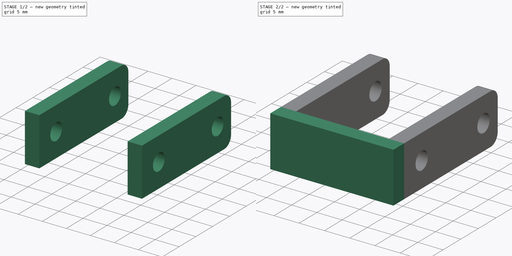
[diagram: build sequence overview — one tinted view per stage of 2, left to right]
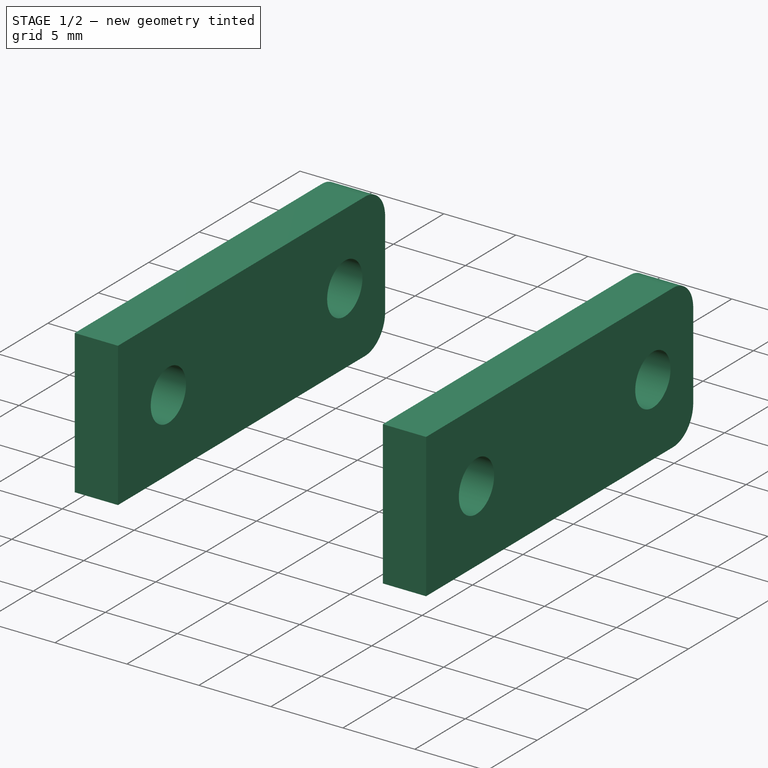
[diagram: stage 1 of 2 — iso view after this stage's code; geometry added in this stage tinted green]
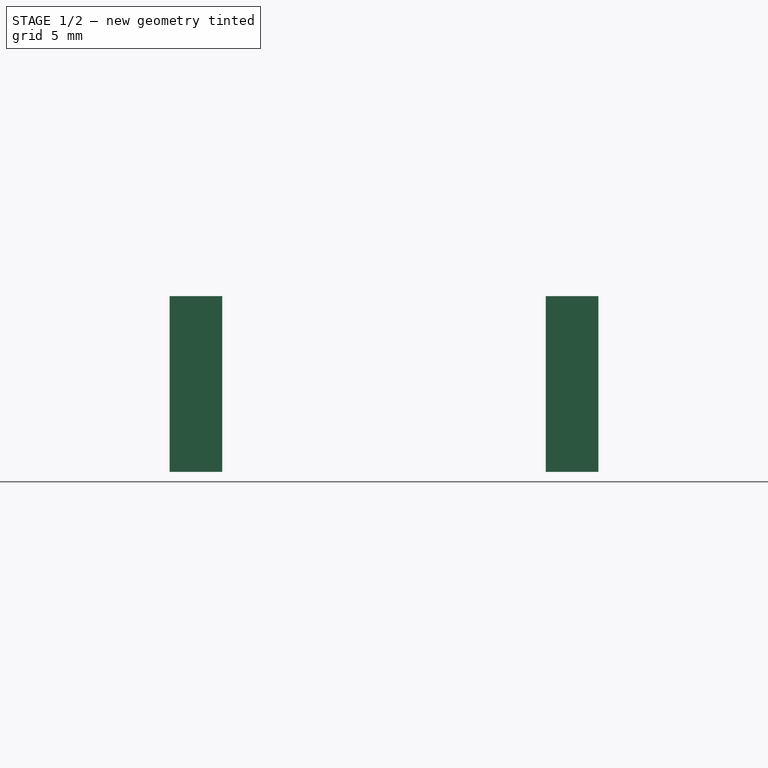
[diagram: stage 1 of 2 — front view after this stage's code; geometry added in this stage tinted green]
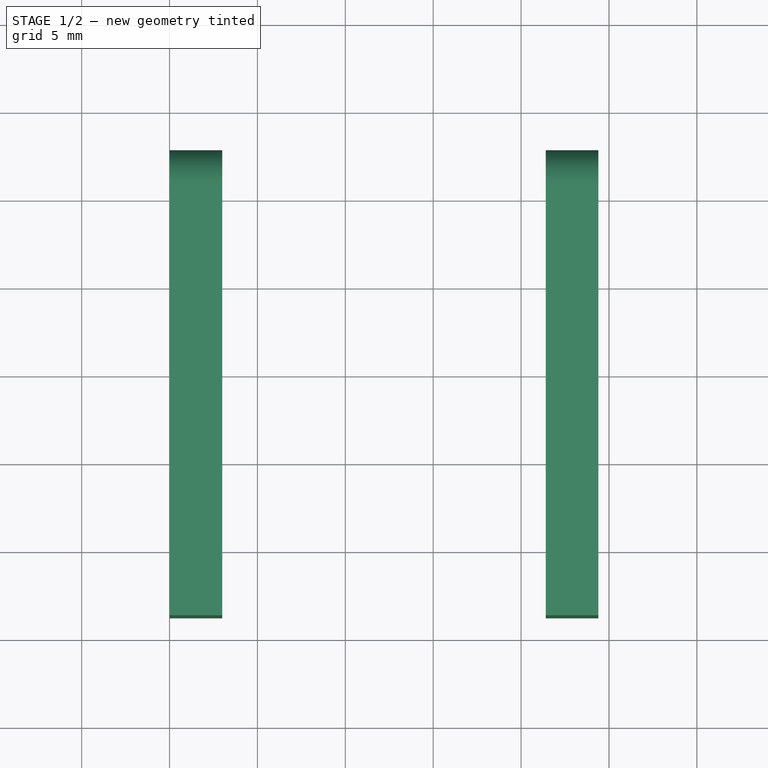
[diagram: stage 1 of 2 — top view after this stage's code; geometry added in this stage tinted green]
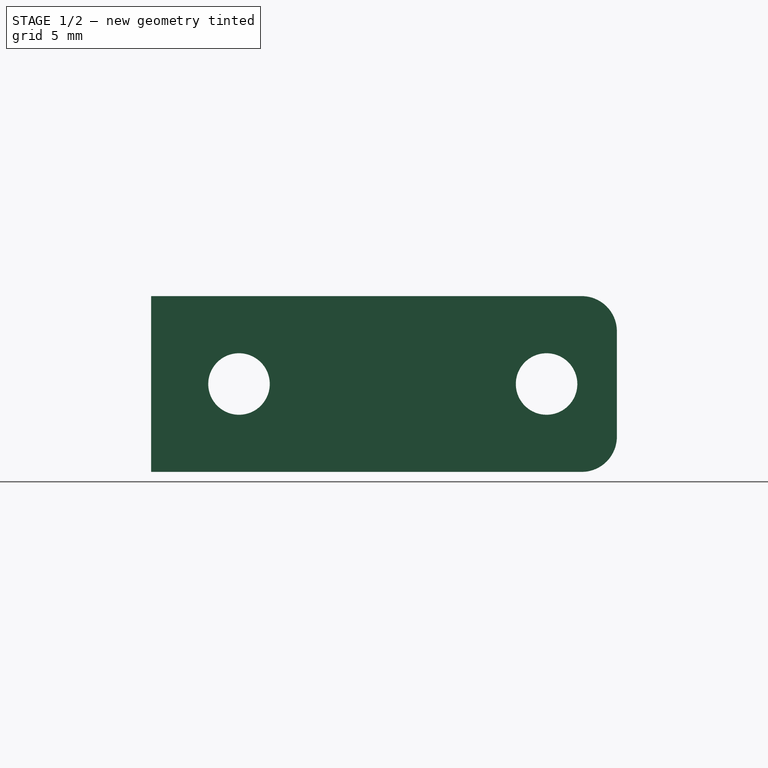
[diagram: stage 1 of 2 — right view after this stage's code; geometry added in this stage tinted green]
FCSTD DOCUMENT  (FreeCAD 0.16R6703 (Git))
Label: motor holder
License: All rights reserved
LicenseURL: http://en.wikipedia.org/wiki/All_rights_reserved
objects: Sketcher::SketchObject×3, PartDesign::Pad×2, PartDesign::Pocket×1
note: 9 computed .brp shape members not serialized (recipe doc carries the construction recipe); baked Part::Feature solids carry a one-line shape summary decoded from their .brp

FEATURE [Sketcher::SketchObject] Sketch
  Placement = pos=(0,0,0) rot=(0.57735,0.57735,0.57735;2.0944rad)
  sketch-geometry (8):
    g0: LineSegment StartX=-13.75 StartY=5 StartZ=0 EndX=10.75 EndY=5 EndZ=0
    g1: LineSegment StartX=12.75 StartY=3 StartZ=0 EndX=12.75 EndY=-3 EndZ=0
    g2: LineSegment StartX=10.75 StartY=-5 StartZ=0 EndX=-13.75 EndY=-5 EndZ=0
    g3: LineSegment StartX=-13.75 StartY=-5 StartZ=0 EndX=-13.75 EndY=5 EndZ=0
    g4: ArcOfCircle CenterX=10.75 CenterY=3 CenterZ=0 NormalX=0 NormalY=0 NormalZ=1 Radius=2 StartAngle=0 EndAngle=1.5708
    g5: ArcOfCircle CenterX=10.75 CenterY=-3 CenterZ=0 NormalX=0 NormalY=0 NormalZ=1 Radius=2 StartAngle=4.71239 EndAngle=6.28319
    g6: Circle CenterX=-8.75 CenterY=0 CenterZ=0 NormalX=0 NormalY=0 NormalZ=1 Radius=1.75
    g7: Circle CenterX=8.75 CenterY=0 CenterZ=0 NormalX=0 NormalY=0 NormalZ=1 Radius=1.75
  constraints (22):
    c: Coincident(g2,g3)
    c: Coincident(g3,g0)
    c: Horizontal(g0)
    c: Horizontal(g2)
    c: Vertical(g1)
    c: Vertical(g3)
    c: Tangent(g0,g4) = 1.5708
    c: Tangent(g1,g4) = 1.5708
    c: Tangent(g1,g5) = 1.5708
    c: Tangent(g2,g5) = 1.5708
    c: Radius(g5) = 2
    c: Radius(g4) = 2
    c: Symmetric(g0,g2,g-1)
    c: PointOnObject(g6,g-1)
    c: PointOnObject(g7,g-1)
    c: Symmetric(g6,g7,g-1)
    c: Distance(g6,g7) = 17.5
    c: Radius(g7) = 1.75
    c: Equal(g7,g6)
    c: DistanceX(g7,g1) = 4
    c: Distance(g3) = 10
    c: DistanceX(g0,g6) = 5
FEATURE [PartDesign::Pad] Pad
  Length = 24.4
  Length2 = 100
  Placement = pos=(0,0,0) rot=(0.57735,0.57735,0.57735;2.0944rad)
  Sketch = -> Sketch
  Type = 0
FEATURE [Sketcher::SketchObject] Sketch001
  ExternalGeometry = -> [Pad]
  Placement = pos=(0,-13.75,0) rot=(0.57735,0.57735,-0.57735;2.0944rad)
  Support = -> Pad [Face2]
  sketch-geometry (4):
    g0: LineSegment StartX=-5 StartY=21.4 StartZ=0 EndX=5 EndY=21.4 EndZ=0
    g1: LineSegment StartX=5 StartY=21.4 StartZ=0 EndX=5 EndY=3 EndZ=0
    g2: LineSegment StartX=5 StartY=3 StartZ=0 EndX=-5 EndY=3 EndZ=0
    g3: LineSegment StartX=-5 StartY=3 StartZ=0 EndX=-5 EndY=21.4 EndZ=0
  constraints (12):
    c: Coincident(g0,g1)
    c: Coincident(g1,g2)
    c: Coincident(g2,g3)
    c: Coincident(g3,g0)
    c: Horizontal(g0)
    c: Horizontal(g2)
    c: Vertical(g1)
    c: Vertical(g3)
    c: PointOnObject(g0,g-5)
    c: PointOnObject(g1,g-6)
    c: DistanceY(g0,g-6) = 3
    c: DistanceY(g-6,g1) = 3
FEATURE [PartDesign::Pocket] Pocket
  Length = 0
  Placement = pos=(0,0,0) rot=(0.57735,0.57735,0.57735;2.0944rad)
  Sketch = -> Sketch001
  Type = 3
  UpToFace = -> Pad [Face5]
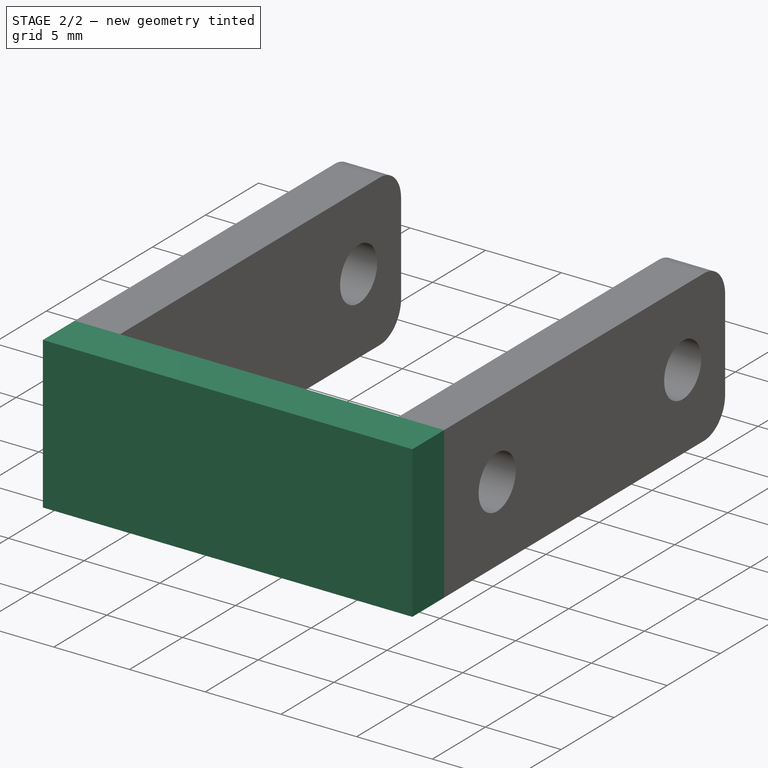
[diagram: stage 2 of 2 — iso view after this stage's code; geometry added in this stage tinted green]
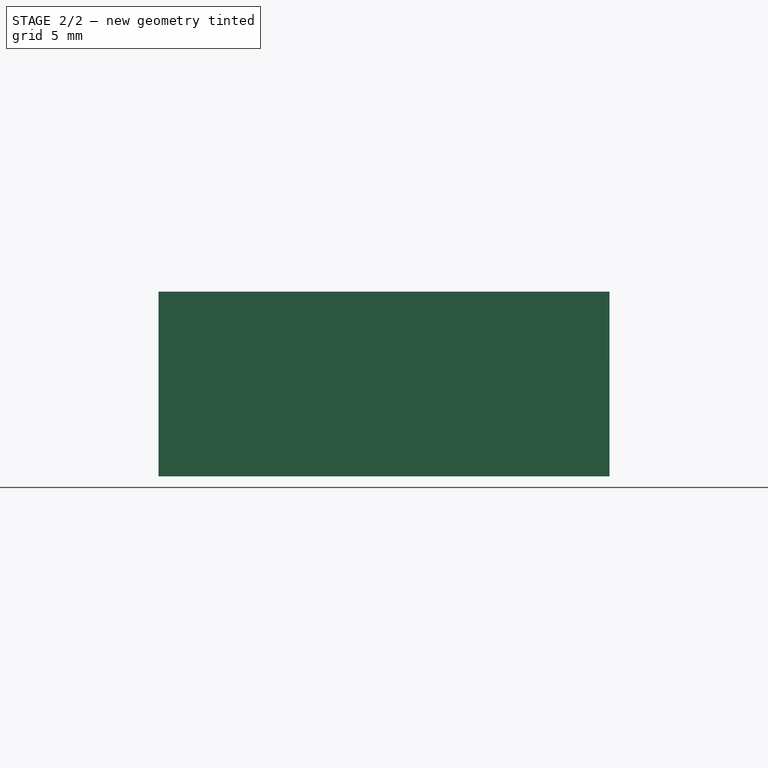
[diagram: stage 2 of 2 — front view after this stage's code; geometry added in this stage tinted green]
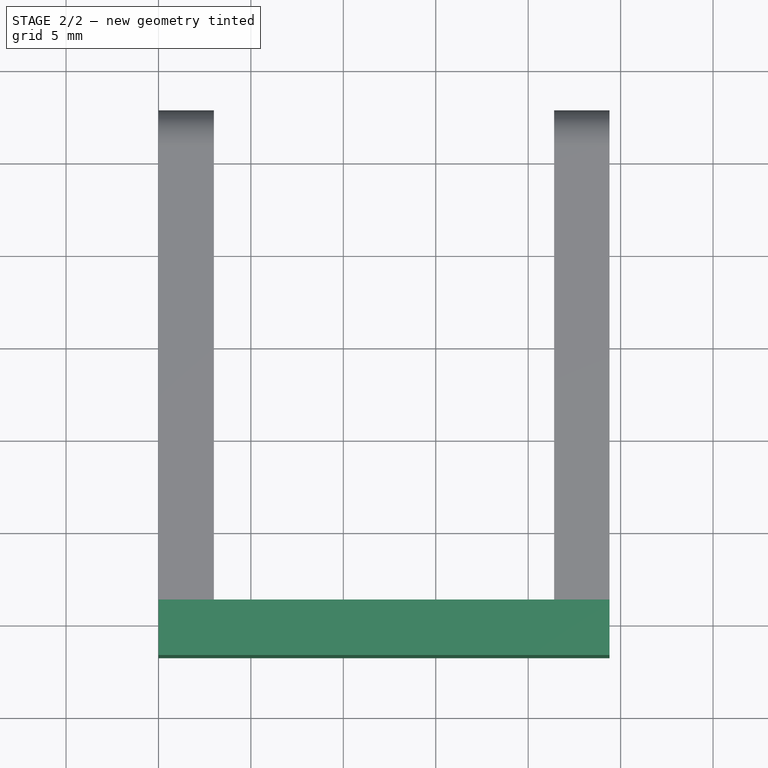
[diagram: stage 2 of 2 — top view after this stage's code; geometry added in this stage tinted green]
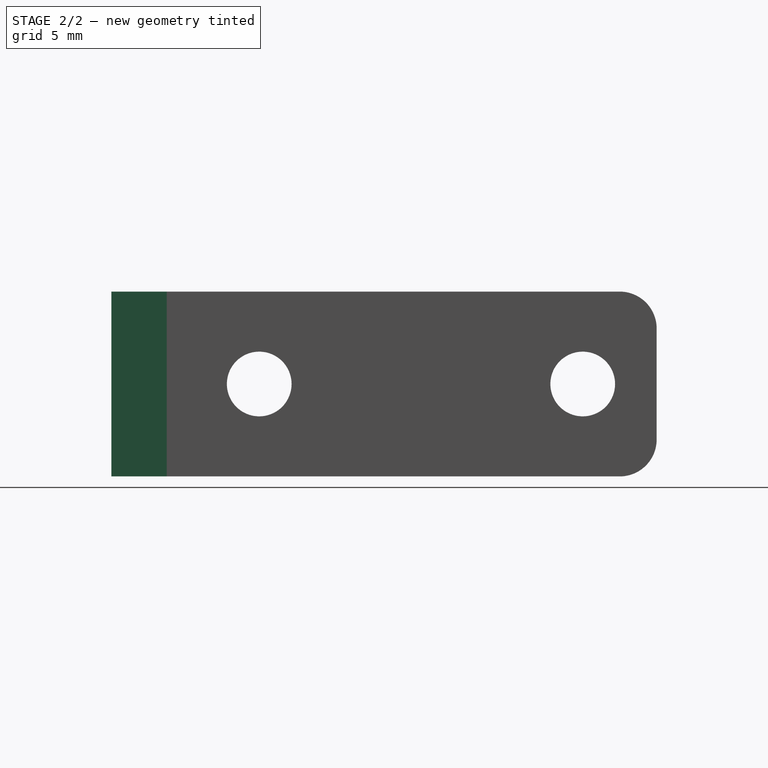
[diagram: stage 2 of 2 — right view after this stage's code; geometry added in this stage tinted green]
FEATURE [Sketcher::SketchObject] Sketch002
  ExternalGeometry = -> [Pocket]
  Placement = pos=(0,-13.75,0) rot=(-0.57735,-0.57735,0.57735;4.18879rad)
  Support = -> Pocket [Face13]
  sketch-geometry (4):
    g0: LineSegment StartX=-5 StartY=24.4 StartZ=0 EndX=5 EndY=24.4 EndZ=0
    g1: LineSegment StartX=5 StartY=24.4 StartZ=0 EndX=5 EndY=0 EndZ=0
    g2: LineSegment StartX=5 StartY=0 StartZ=0 EndX=-5 EndY=0 EndZ=0
    g3: LineSegment StartX=-5 StartY=0 StartZ=0 EndX=-5 EndY=24.4 EndZ=0
  constraints (10):
    c: Coincident(g0,g1)
    c: Coincident(g1,g2)
    c: Coincident(g2,g3)
    c: Coincident(g3,g0)
    c: Horizontal(g0)
    c: Horizontal(g2)
    c: Vertical(g1)
    c: Vertical(g3)
    c: Coincident(g0,g-3)
    c: Coincident(g1,g-4)
FEATURE [PartDesign::Pad] Pad001
  Length = 3
  Length2 = 100
  Placement = pos=(0,0,0) rot=(0.57735,0.57735,0.57735;2.0944rad)
  Sketch = -> Sketch002
  Type = 0
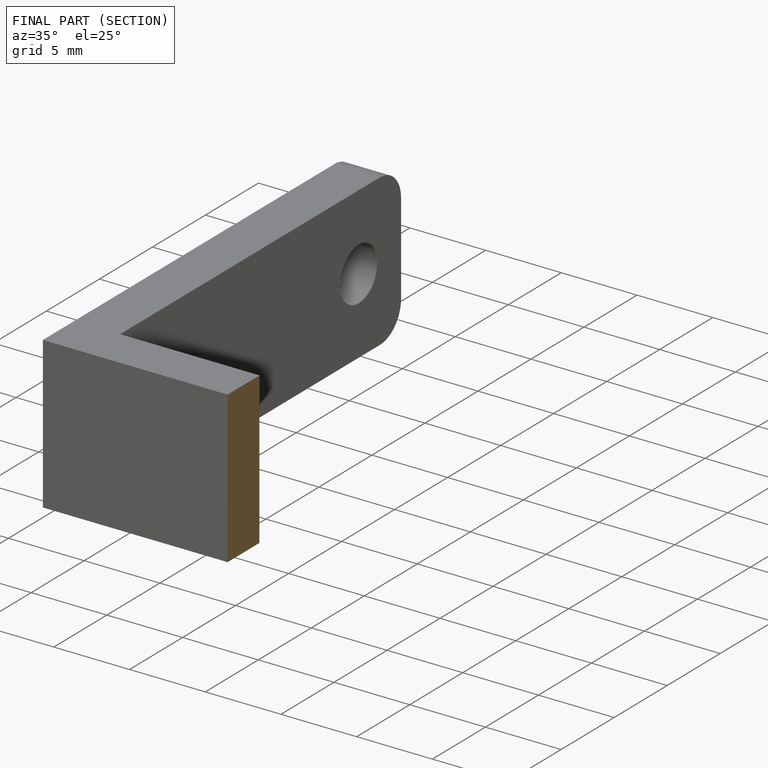
[diagram: finished part — half-section view (interior)]
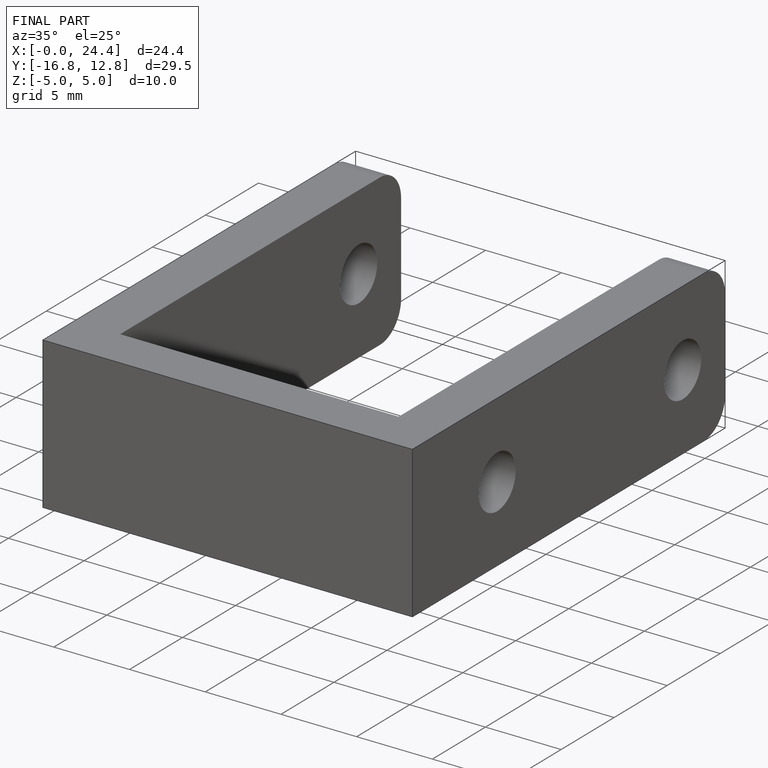
[diagram: finished part — iso view with bounding-box wireframe]
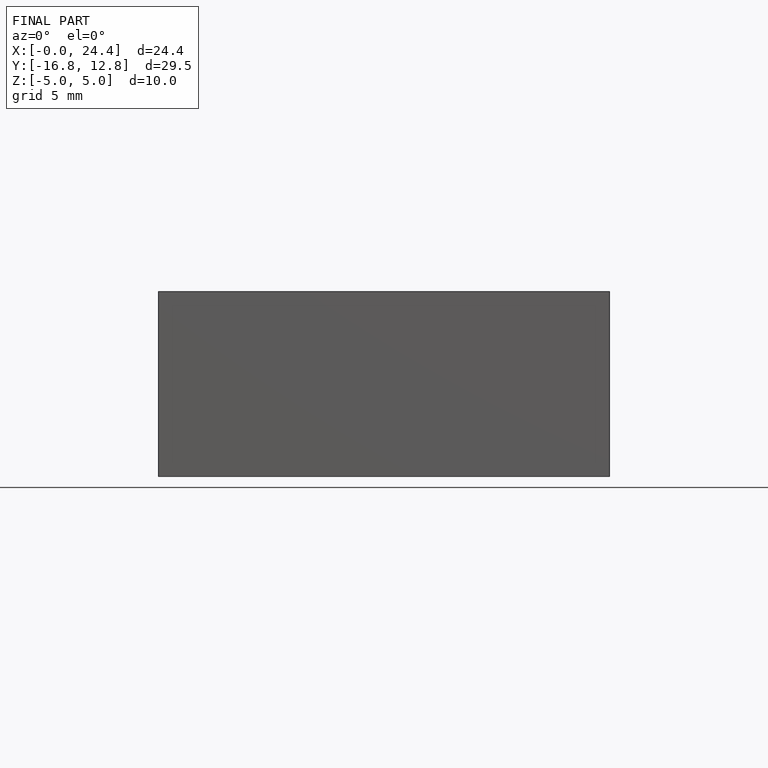
[diagram: finished part — front view with bounding-box wireframe]
